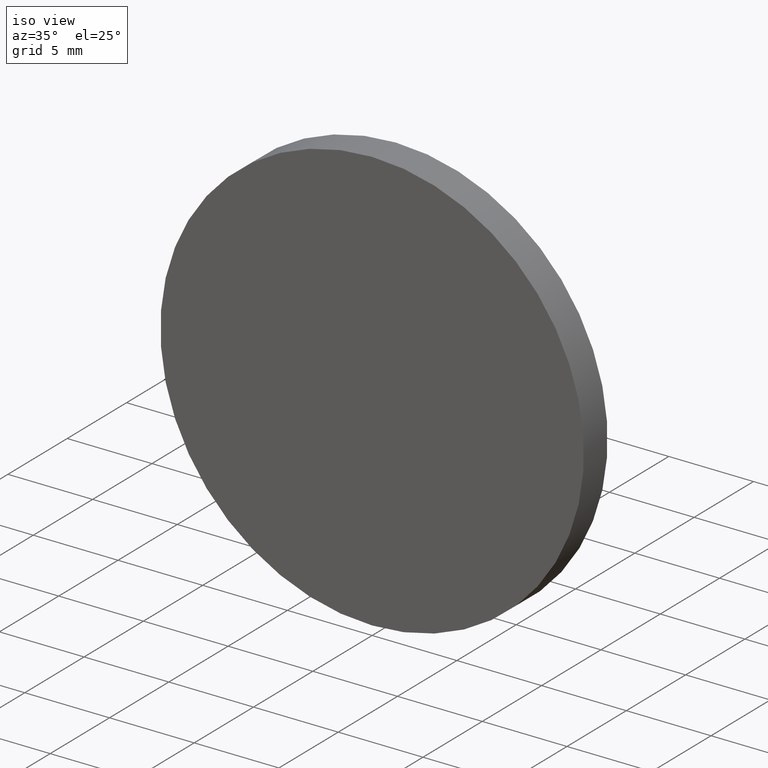
[diagram: clean part render]
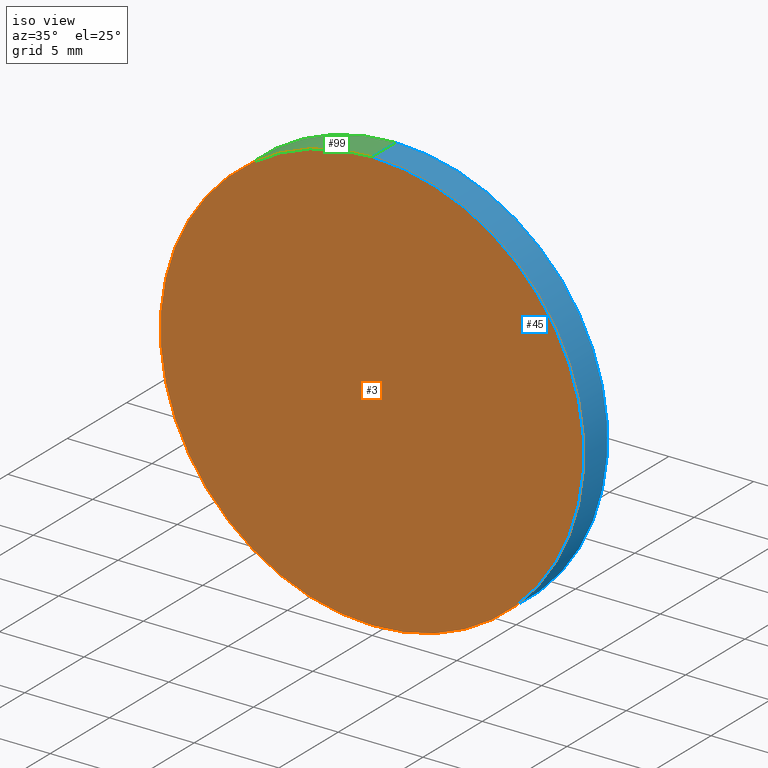
[diagram: same view with three faces highlighted in distinct colors, each labeled with its STEP entity id]
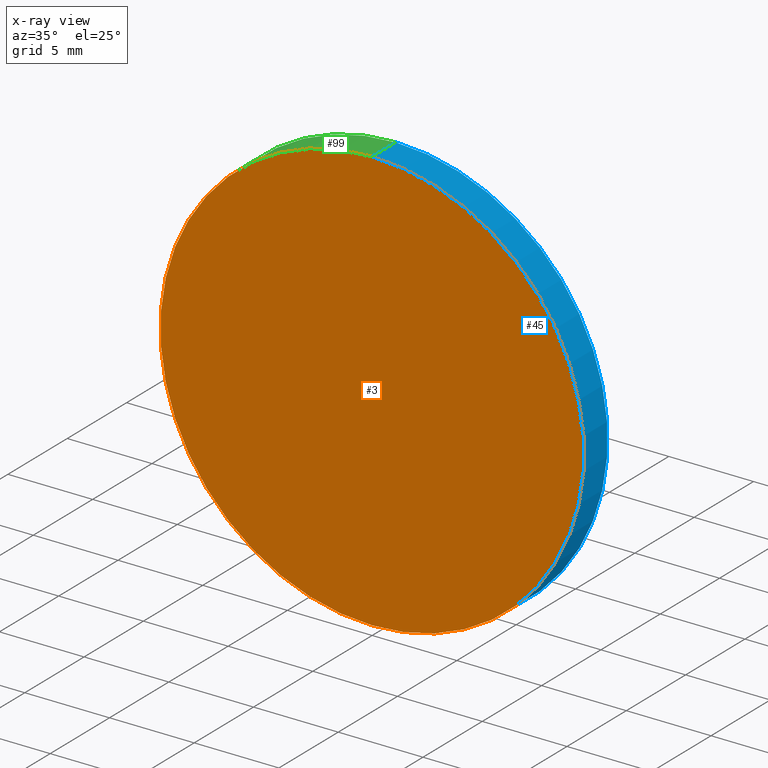
[diagram: x-ray of the same camera — body ghosted, the three highlighted faces saturated]
A machine part, iso view with three faces highlighted in distinct colors.
The next image is the same camera in x-ray (body ghosted, the three faces saturated) — at least one of them is partly hidden behind the body in this view.
Their STEP definitions:

[orange] entity #3 — the highlighted planar face has unit normal (0, 1, 0).
#1 = EDGE_LOOP ( 'NONE', ( #107, #24 ) ) ;
#3 = ADVANCED_FACE ( 'NONE', ( #117 ), #60, .F. ) ;
#7 = CIRCLE ( 'NONE', #41, 12.50000000000000000 ) ;
#9 = AXIS2_PLACEMENT_3D ( 'NONE', #127, #51, #12 ) ;
#11 = CARTESIAN_POINT ( 'NONE',  ( 0.0000000000000000000, 0.0000000000000000000, 0.0000000000000000000 ) ) ;
#12 = DIRECTION ( 'NONE',  ( 0.0000000000000000000, -0.0000000000000000000, 1.000000000000000000 ) ) ;
#14 = CARTESIAN_POINT ( 'NONE',  ( 1.530808498934191500E-015, 0.0000000000000000000, 12.50000000000000000 ) ) ;
#21 = DIRECTION ( 'NONE',  ( 0.0000000000000000000, 1.000000000000000000, 0.0000000000000000000 ) ) ;
#24 = ORIENTED_EDGE ( 'NONE', *, *, #101, .F. ) ;
#38 = AXIS2_PLACEMENT_3D ( 'NONE', #69, #135, #56 ) ;
#41 = AXIS2_PLACEMENT_3D ( 'NONE', #11, #21, #72 ) ;
#51 = DIRECTION ( 'NONE',  ( 0.0000000000000000000, 1.000000000000000000, 0.0000000000000000000 ) ) ;
#56 = DIRECTION ( 'NONE',  ( 0.0000000000000000000, 0.0000000000000000000, 1.000000000000000000 ) ) ;
#60 = PLANE ( 'NONE',  #9 ) ;
#69 = CARTESIAN_POINT ( 'NONE',  ( 0.0000000000000000000, 0.0000000000000000000, 0.0000000000000000000 ) ) ;
#72 = DIRECTION ( 'NONE',  ( 0.0000000000000000000, 0.0000000000000000000, 1.000000000000000000 ) ) ;
#75 = VERTEX_POINT ( 'NONE', #113 ) ;
#89 = CIRCLE ( 'NONE', #38, 12.50000000000000000 ) ;
#101 = EDGE_CURVE ( 'NONE', #139, #75, #89, .T. ) ;
#107 = ORIENTED_EDGE ( 'NONE', *, *, #121, .F. ) ;
#113 = CARTESIAN_POINT ( 'NONE',  ( 0.0000000000000000000, 0.0000000000000000000, -12.50000000000000000 ) ) ;
#117 = FACE_OUTER_BOUND ( 'NONE', #1, .T. ) ;
#121 = EDGE_CURVE ( 'NONE', #75, #139, #7, .T. ) ;
#127 = CARTESIAN_POINT ( 'NONE',  ( 0.0000000000000000000, 0.0000000000000000000, 0.0000000000000000000 ) ) ;
#135 = DIRECTION ( 'NONE',  ( 0.0000000000000000000, 1.000000000000000000, 0.0000000000000000000 ) ) ;
#139 = VERTEX_POINT ( 'NONE', #14 ) ;

[blue] entity #45 — the highlighted cylindrical surface (partial cylindrical patch) has radius 12.5 mm, axis along (-0, -1, -0).
#5 = CARTESIAN_POINT ( 'NONE',  ( 0.0000000000000000000, 2.000000000000000000, 0.0000000000000000000 ) ) ;
#14 = CARTESIAN_POINT ( 'NONE',  ( 1.530808498934191500E-015, 0.0000000000000000000, 12.50000000000000000 ) ) ;
#19 = VERTEX_POINT ( 'NONE', #31 ) ;
#20 = DIRECTION ( 'NONE',  ( 0.0000000000000000000, 1.000000000000000000, 0.0000000000000000000 ) ) ;
#22 = AXIS2_PLACEMENT_3D ( 'NONE', #5, #44, #37 ) ;
#29 = FACE_OUTER_BOUND ( 'NONE', #78, .T. ) ;
#30 = CARTESIAN_POINT ( 'NONE',  ( 1.530808498934191500E-015, 2.000000000000000000, 12.50000000000000000 ) ) ;
#31 = CARTESIAN_POINT ( 'NONE',  ( 0.0000000000000000000, 2.000000000000000000, -12.50000000000000000 ) ) ;
#36 = VECTOR ( 'NONE', #43, 1000.000000000000000 ) ;
#37 = DIRECTION ( 'NONE',  ( 0.0000000000000000000, 0.0000000000000000000, -1.000000000000000000 ) ) ;
#38 = AXIS2_PLACEMENT_3D ( 'NONE', #69, #135, #56 ) ;
#43 = DIRECTION ( 'NONE',  ( -0.0000000000000000000, -1.000000000000000000, -0.0000000000000000000 ) ) ;
#44 = DIRECTION ( 'NONE',  ( -0.0000000000000000000, -1.000000000000000000, -0.0000000000000000000 ) ) ;
#45 = ADVANCED_FACE ( 'NONE', ( #29 ), #124, .T. ) ;
#46 = VERTEX_POINT ( 'NONE', #30 ) ;
#53 = ORIENTED_EDGE ( 'NONE', *, *, #134, .T. ) ;
#56 = DIRECTION ( 'NONE',  ( 0.0000000000000000000, 0.0000000000000000000, 1.000000000000000000 ) ) ;
#65 = LINE ( 'NONE', #92, #120 ) ;
#69 = CARTESIAN_POINT ( 'NONE',  ( 0.0000000000000000000, 0.0000000000000000000, 0.0000000000000000000 ) ) ;
#71 = CARTESIAN_POINT ( 'NONE',  ( 0.0000000000000000000, 2.000000000000000000, -12.50000000000000000 ) ) ;
#75 = VERTEX_POINT ( 'NONE', #113 ) ;
#78 = EDGE_LOOP ( 'NONE', ( #140, #53, #96, #100 ) ) ;
#81 = AXIS2_PLACEMENT_3D ( 'NONE', #114, #20, #83 ) ;
#83 = DIRECTION ( 'NONE',  ( 0.0000000000000000000, 0.0000000000000000000, 1.000000000000000000 ) ) ;
#86 = CIRCLE ( 'NONE', #81, 12.50000000000000000 ) ;
#89 = CIRCLE ( 'NONE', #38, 12.50000000000000000 ) ;
#91 = DIRECTION ( 'NONE',  ( -0.0000000000000000000, -1.000000000000000000, -0.0000000000000000000 ) ) ;
#92 = CARTESIAN_POINT ( 'NONE',  ( 1.530808498934191500E-015, 2.000000000000000000, 12.50000000000000000 ) ) ;
#94 = LINE ( 'NONE', #71, #36 ) ;
#95 = EDGE_CURVE ( 'NONE', #19, #75, #94, .T. ) ;
#96 = ORIENTED_EDGE ( 'NONE', *, *, #101, .T. ) ;
#100 = ORIENTED_EDGE ( 'NONE', *, *, #95, .F. ) ;
#101 = EDGE_CURVE ( 'NONE', #139, #75, #89, .T. ) ;
#113 = CARTESIAN_POINT ( 'NONE',  ( 0.0000000000000000000, 0.0000000000000000000, -12.50000000000000000 ) ) ;
#114 = CARTESIAN_POINT ( 'NONE',  ( 0.0000000000000000000, 2.000000000000000000, 0.0000000000000000000 ) ) ;
#120 = VECTOR ( 'NONE', #91, 1000.000000000000000 ) ;
#124 = CYLINDRICAL_SURFACE ( 'NONE', #22, 12.50000000000000000 ) ;
#130 = EDGE_CURVE ( 'NONE', #46, #19, #86, .T. ) ;
#134 = EDGE_CURVE ( 'NONE', #46, #139, #65, .T. ) ;
#135 = DIRECTION ( 'NONE',  ( 0.0000000000000000000, 1.000000000000000000, 0.0000000000000000000 ) ) ;
#139 = VERTEX_POINT ( 'NONE', #14 ) ;
#140 = ORIENTED_EDGE ( 'NONE', *, *, #130, .F. ) ;

[green] entity #99 — the highlighted cylindrical surface (partial cylindrical patch) has radius 12.5 mm, axis along (-0, -1, -0).
#6 = AXIS2_PLACEMENT_3D ( 'NONE', #110, #28, #97 ) ;
#7 = CIRCLE ( 'NONE', #41, 12.50000000000000000 ) ;
#8 = CYLINDRICAL_SURFACE ( 'NONE', #33, 12.50000000000000000 ) ;
#11 = CARTESIAN_POINT ( 'NONE',  ( 0.0000000000000000000, 0.0000000000000000000, 0.0000000000000000000 ) ) ;
#14 = CARTESIAN_POINT ( 'NONE',  ( 1.530808498934191500E-015, 0.0000000000000000000, 12.50000000000000000 ) ) ;
#15 = EDGE_LOOP ( 'NONE', ( #55, #47, #50, #84 ) ) ;
#18 = CARTESIAN_POINT ( 'NONE',  ( 0.0000000000000000000, 2.000000000000000000, 0.0000000000000000000 ) ) ;
#19 = VERTEX_POINT ( 'NONE', #31 ) ;
#21 = DIRECTION ( 'NONE',  ( 0.0000000000000000000, 1.000000000000000000, 0.0000000000000000000 ) ) ;
#28 = DIRECTION ( 'NONE',  ( 0.0000000000000000000, 1.000000000000000000, 0.0000000000000000000 ) ) ;
#30 = CARTESIAN_POINT ( 'NONE',  ( 1.530808498934191500E-015, 2.000000000000000000, 12.50000000000000000 ) ) ;
#31 = CARTESIAN_POINT ( 'NONE',  ( 0.0000000000000000000, 2.000000000000000000, -12.50000000000000000 ) ) ;
#33 = AXIS2_PLACEMENT_3D ( 'NONE', #18, #111, #57 ) ;
#36 = VECTOR ( 'NONE', #43, 1000.000000000000000 ) ;
#41 = AXIS2_PLACEMENT_3D ( 'NONE', #11, #21, #72 ) ;
#43 = DIRECTION ( 'NONE',  ( -0.0000000000000000000, -1.000000000000000000, -0.0000000000000000000 ) ) ;
#46 = VERTEX_POINT ( 'NONE', #30 ) ;
#47 = ORIENTED_EDGE ( 'NONE', *, *, #108, .F. ) ;
#50 = ORIENTED_EDGE ( 'NONE', *, *, #95, .T. ) ;
#55 = ORIENTED_EDGE ( 'NONE', *, *, #134, .F. ) ;
#57 = DIRECTION ( 'NONE',  ( 0.0000000000000000000, 0.0000000000000000000, -1.000000000000000000 ) ) ;
#58 = CIRCLE ( 'NONE', #6, 12.50000000000000000 ) ;
#65 = LINE ( 'NONE', #92, #120 ) ;
#71 = CARTESIAN_POINT ( 'NONE',  ( 0.0000000000000000000, 2.000000000000000000, -12.50000000000000000 ) ) ;
#72 = DIRECTION ( 'NONE',  ( 0.0000000000000000000, 0.0000000000000000000, 1.000000000000000000 ) ) ;
#75 = VERTEX_POINT ( 'NONE', #113 ) ;
#76 = FACE_OUTER_BOUND ( 'NONE', #15, .T. ) ;
#84 = ORIENTED_EDGE ( 'NONE', *, *, #121, .T. ) ;
#91 = DIRECTION ( 'NONE',  ( -0.0000000000000000000, -1.000000000000000000, -0.0000000000000000000 ) ) ;
#92 = CARTESIAN_POINT ( 'NONE',  ( 1.530808498934191500E-015, 2.000000000000000000, 12.50000000000000000 ) ) ;
#94 = LINE ( 'NONE', #71, #36 ) ;
#95 = EDGE_CURVE ( 'NONE', #19, #75, #94, .T. ) ;
#97 = DIRECTION ( 'NONE',  ( 0.0000000000000000000, 0.0000000000000000000, 1.000000000000000000 ) ) ;
#99 = ADVANCED_FACE ( 'NONE', ( #76 ), #8, .T. ) ;
#108 = EDGE_CURVE ( 'NONE', #19, #46, #58, .T. ) ;
#110 = CARTESIAN_POINT ( 'NONE',  ( 0.0000000000000000000, 2.000000000000000000, 0.0000000000000000000 ) ) ;
#111 = DIRECTION ( 'NONE',  ( -0.0000000000000000000, -1.000000000000000000, -0.0000000000000000000 ) ) ;
#113 = CARTESIAN_POINT ( 'NONE',  ( 0.0000000000000000000, 0.0000000000000000000, -12.50000000000000000 ) ) ;
#120 = VECTOR ( 'NONE', #91, 1000.000000000000000 ) ;
#121 = EDGE_CURVE ( 'NONE', #75, #139, #7, .T. ) ;
#134 = EDGE_CURVE ( 'NONE', #46, #139, #65, .T. ) ;
#139 = VERTEX_POINT ( 'NONE', #14 ) ;